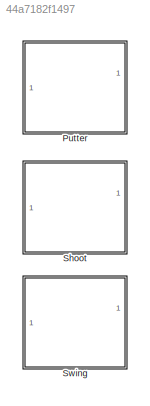
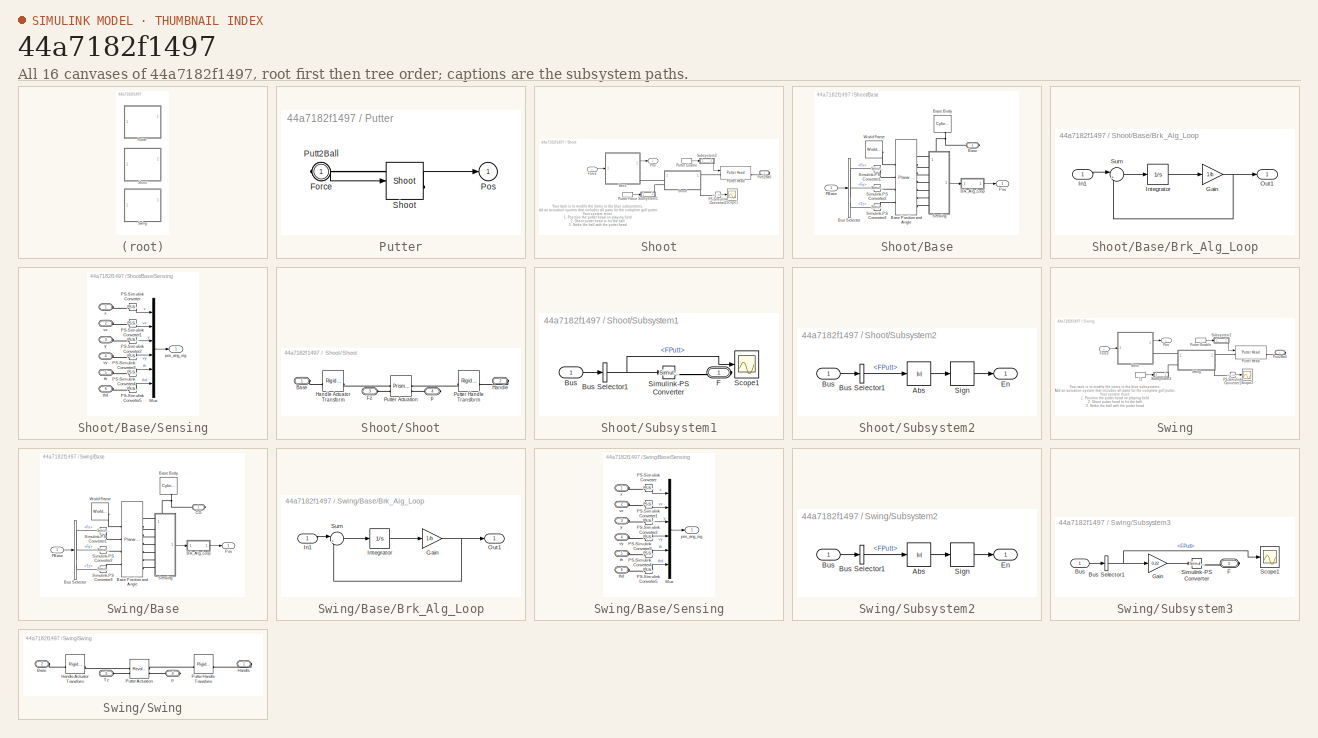
[diagram: thumbnail index - all 16 canvases of the model, root first then tree order]
MODEL slx_44a7182f1497
KIND library
CONFIG AbsTol = auto
CONFIG EnableMultiTasking = on
CONFIG FixedStep = auto
CONFIG MaxStep = auto
CONFIG MinStep = auto
CONFIG RelTol = 1e-3
CONFIG SampleTimeConstraint = Unconstrained
CONFIG SolverName = ode45
CONFIG StartTime = 0.0
CONFIG StopTime = 10.0
BLOCK [SubSystem] Putter
  BlockChoice = Shoot
  MemberBlocks = Shoot,Swing
  TemplateBlock = self
BLOCK [Inport] Putter/Force
BLOCK [Outport] Putter/Pos
  VectorParamsAs1DForOutWhenUnconnected = off
BLOCK [PMIOPort] Putter/Putt2Ball
  Side = Right
BLOCK [Reference] Putter/Shoot  REF=$bdroot/Shoot
  SourceBlock = $bdroot/Shoot
BLOCK [SubSystem] Shoot
BLOCK [SubSystem] Shoot/Base
BLOCK [PMIOPort] Shoot/Base/Base
  NameLocation = top
  Side = Right
BLOCK [Reference] Shoot/Base/Base Body  REF=sm_lib/Body Elements/Cylindrical Solid
  NameLocation = left
  SourceBlock = sm_lib/Body Elements/Cylindrical Solid
  SourceType = Cylindrical Solid
BLOCK [Reference] Shoot/Base/Base Position and Angle  REF=sm_lib/Joints/Planar Joint
  SourceBlock = sm_lib/Joints/Planar Joint
  SourceType = Planar Joint
BLOCK [SubSystem] Shoot/Base/Brk_Alg_Loop
BLOCK [Gain] Shoot/Base/Brk_Alg_Loop/Gain
  Gain = 1/b
BLOCK [Inport] Shoot/Base/Brk_Alg_Loop/In1
BLOCK [Integrator] Shoot/Base/Brk_Alg_Loop/Integrator
  InitialCondition = x_initial
BLOCK [Outport] Shoot/Base/Brk_Alg_Loop/Out1
  VectorParamsAs1DForOutWhenUnconnected = off
BLOCK [Sum] Shoot/Base/Brk_Alg_Loop/Sum
  InputSameDT = on
  Inputs = |+-
  OutDataTypeStr = Inherit: Same as first input
  SaturateOnIntegerOverflow = on
BLOCK [BusSelector] Shoot/Base/Bus Selector
  OutputSignals = Fx,Fy,Tz
BLOCK [Inport] Shoot/Base/FBase
BLOCK [Outport] Shoot/Base/Pos
  VectorParamsAs1DForOutWhenUnconnected = off
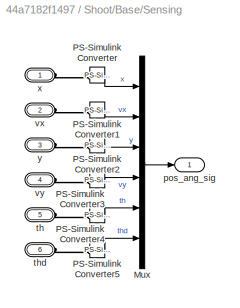
BLOCK [SubSystem] Shoot/Base/Sensing
BLOCK [Mux] Shoot/Base/Sensing/Mux
  DisplayOption = bar
  Inputs = 6
BLOCK [Reference] Shoot/Base/Sensing/PS-Simulink Converter  REF=nesl_utility/PS-Simulink
Converter
  SourceBlock = nesl_utility/PS-Simulink\nConverter
  SourceType = PS-Simulink\nConverter
BLOCK [Reference] Shoot/Base/Sensing/PS-Simulink Converter1  REF=nesl_utility/PS-Simulink
Converter
  SourceBlock = nesl_utility/PS-Simulink\nConverter
  SourceType = PS-Simulink\nConverter
BLOCK [Reference] Shoot/Base/Sensing/PS-Simulink Converter2  REF=nesl_utility/PS-Simulink
Converter
  SourceBlock = nesl_utility/PS-Simulink\nConverter
  SourceType = PS-Simulink\nConverter
BLOCK [Reference] Shoot/Base/Sensing/PS-Simulink Converter3  REF=nesl_utility/PS-Simulink
Converter
  SourceBlock = nesl_utility/PS-Simulink\nConverter
  SourceType = PS-Simulink\nConverter
BLOCK [Reference] Shoot/Base/Sensing/PS-Simulink Converter4  REF=nesl_utility/PS-Simulink
Converter
  SourceBlock = nesl_utility/PS-Simulink\nConverter
  SourceType = PS-Simulink\nConverter
BLOCK [Reference] Shoot/Base/Sensing/PS-Simulink Converter5  REF=nesl_utility/PS-Simulink
Converter
  SourceBlock = nesl_utility/PS-Simulink\nConverter
  SourceType = PS-Simulink\nConverter
BLOCK [Outport] Shoot/Base/Sensing/pos_ang_sig
  VectorParamsAs1DForOutWhenUnconnected = off
BLOCK [PMIOPort] Shoot/Base/Sensing/th
  Port = 5
  Side = Left
BLOCK [PMIOPort] Shoot/Base/Sensing/thd
  Port = 6
  Side = Left
BLOCK [PMIOPort] Shoot/Base/Sensing/vx
  Port = 2
  Side = Left
BLOCK [PMIOPort] Shoot/Base/Sensing/vy
  Port = 4
  Side = Left
BLOCK [PMIOPort] Shoot/Base/Sensing/x
  Side = Left
BLOCK [PMIOPort] Shoot/Base/Sensing/y
  Port = 3
  Side = Left
BLOCK [Reference] Shoot/Base/Simulink-PS Converter1  REF=nesl_utility/Simulink-PS
Converter
  SourceBlock = nesl_utility/Simulink-PS\nConverter
  SourceType = Simulink-PS\nConverter
BLOCK [Reference] Shoot/Base/Simulink-PS Converter2  REF=nesl_utility/Simulink-PS
Converter
  SourceBlock = nesl_utility/Simulink-PS\nConverter
  SourceType = Simulink-PS\nConverter
BLOCK [Reference] Shoot/Base/Simulink-PS Converter3  REF=nesl_utility/Simulink-PS
Converter
  SourceBlock = nesl_utility/Simulink-PS\nConverter
  SourceType = Simulink-PS\nConverter
BLOCK [Reference] Shoot/Base/World Frame  REF=sm_lib/Frames and
Transforms/World Frame
  NameLocation = top
  SourceBlock = sm_lib/Frames and\nTransforms/World Frame
  SourceType = World Frame
BLOCK [Inport] Shoot/Force
BLOCK [Reference] Shoot/PS-Simulink Converter5  REF=nesl_utility/PS-Simulink
Converter
  SourceBlock = nesl_utility/PS-Simulink\nConverter
  SourceType = PS-Simulink\nConverter
BLOCK [Outport] Shoot/Pos
  VectorParamsAs1DForOutWhenUnconnected = off
BLOCK [PMIOPort] Shoot/Putt2Ball
  Side = Right
BLOCK [InportShadow] Shoot/Putter Enable
BLOCK [InportShadow] Shoot/Putter Force
BLOCK [Reference] Shoot/Putter Head  REF=Golf_Components_Lib/Putter Head
  SourceBlock = Golf_Components_Lib/Putter Head
  SourceType = Wall with Round Ends, 2D Contact Forces
BLOCK [Scope] Shoot/Scope1
  Floating = off
  NumInputPorts = 1
  ScopeSpecificationString = Simulink.scopes.TimeScopeBlockCfg('CurrentConfiguration', extmgr.ConfigurationSet(extmgr.Configuration('Core','General UI',true),extmgr.Configuration('Core','Source UI',true),extmgr.Configuration('Sources','WiredSimulink',true,'DataLoggingVariableName','ScopeData7','DataLoggingSaveFormat','StructureWithTime','DataLoggingDecimation','1','DataLoggingDecimateData',true),extmgr.Configuration('Visuals'...<+895ch>
BLOCK [SubSystem] Shoot/Shoot
BLOCK [PMIOPort] Shoot/Shoot/Base
  Side = Left
BLOCK [PMIOPort] Shoot/Shoot/Fz
  Port = 3
  Side = Left
BLOCK [PMIOPort] Shoot/Shoot/Handle
  Port = 2
  Side = Right
BLOCK [Reference] Shoot/Shoot/Handle Actuator Transform  REF=sm_lib/Frames and
Transforms/Rigid
Transform
  SourceBlock = sm_lib/Frames and\nTransforms/Rigid\nTransform
  SourceType = Rigid\nTransform
BLOCK [Reference] Shoot/Shoot/Putter Actuation  REF=sm_lib/Joints/Prismatic
Joint
  SourceBlock = sm_lib/Joints/Prismatic\nJoint
  SourceType = Prismatic\nJoint
BLOCK [Reference] Shoot/Shoot/Putter Handle Transform  REF=sm_lib/Frames and
Transforms/Rigid
Transform
  SourceBlock = sm_lib/Frames and\nTransforms/Rigid\nTransform
  SourceType = Rigid\nTransform
BLOCK [PMIOPort] Shoot/Shoot/p
  Port = 4
  Side = Right
BLOCK [SubSystem] Shoot/Subsystem1
BLOCK [Inport] Shoot/Subsystem1/Bus
BLOCK [BusSelector] Shoot/Subsystem1/Bus Selector1
  OutputSignals = FPutt
BLOCK [PMIOPort] Shoot/Subsystem1/F
  Side = Right
BLOCK [Scope] Shoot/Subsystem1/Scope1
  Floating = off
  NumInputPorts = 1
  ScopeSpecificationString = Simulink.scopes.TimeScopeBlockCfg('CurrentConfiguration', extmgr.ConfigurationSet(extmgr.Configuration('Core','General UI',true),extmgr.Configuration('Core','Source UI',true),extmgr.Configuration('Sources','WiredSimulink',true,'DataLoggingVariableName','ScopeData11','DataLoggingSaveFormat','StructureWithTime','DataLoggingDecimation','1','DataLoggingDecimateData',true),extmgr.Configuration('Visuals...<+896ch>
BLOCK [Reference] Shoot/Subsystem1/Simulink-PS Converter  REF=nesl_utility/Simulink-PS
Converter
  SourceBlock = nesl_utility/Simulink-PS\nConverter
  SourceType = Simulink-PS\nConverter
BLOCK [SubSystem] Shoot/Subsystem2
BLOCK [Abs] Shoot/Subsystem2/Abs
  SaturateOnIntegerOverflow = off
BLOCK [Inport] Shoot/Subsystem2/Bus
BLOCK [BusSelector] Shoot/Subsystem2/Bus Selector1
  OutputSignals = FPutt
BLOCK [Outport] Shoot/Subsystem2/En
  NameLocation = top
  VectorParamsAs1DForOutWhenUnconnected = off
BLOCK [Signum] Shoot/Subsystem2/Sign
BLOCK [SubSystem] Swing
BLOCK [SubSystem] Swing/Base
BLOCK [Reference] Swing/Base/Base Body  REF=sm_lib/Body Elements/Cylindrical Solid
  NameLocation = left
  SourceBlock = sm_lib/Body Elements/Cylindrical Solid
  SourceType = Cylindrical Solid
BLOCK [Reference] Swing/Base/Base Position and Angle  REF=sm_lib/Joints/Planar Joint
  SourceBlock = sm_lib/Joints/Planar Joint
  SourceType = Planar Joint
BLOCK [SubSystem] Swing/Base/Brk_Alg_Loop
BLOCK [Gain] Swing/Base/Brk_Alg_Loop/Gain
  Gain = 1/b
BLOCK [Inport] Swing/Base/Brk_Alg_Loop/In1
BLOCK [Integrator] Swing/Base/Brk_Alg_Loop/Integrator
  InitialCondition = x_initial
BLOCK [Outport] Swing/Base/Brk_Alg_Loop/Out1
  VectorParamsAs1DForOutWhenUnconnected = off
BLOCK [Sum] Swing/Base/Brk_Alg_Loop/Sum
  InputSameDT = on
  Inputs = |+-
  OutDataTypeStr = Inherit: Same as first input
  SaturateOnIntegerOverflow = on
BLOCK [BusSelector] Swing/Base/Bus Selector
  OutputSignals = Fx,Fy,Tz
BLOCK [PMIOPort] Swing/Base/CG
  NameLocation = top
  Side = Right
BLOCK [Inport] Swing/Base/FBase
BLOCK [Outport] Swing/Base/Pos
  VectorParamsAs1DForOutWhenUnconnected = off
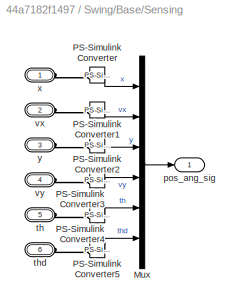
BLOCK [SubSystem] Swing/Base/Sensing
BLOCK [Mux] Swing/Base/Sensing/Mux
  DisplayOption = bar
  Inputs = 6
BLOCK [Reference] Swing/Base/Sensing/PS-Simulink Converter  REF=nesl_utility/PS-Simulink
Converter
  SourceBlock = nesl_utility/PS-Simulink\nConverter
  SourceType = PS-Simulink\nConverter
BLOCK [Reference] Swing/Base/Sensing/PS-Simulink Converter1  REF=nesl_utility/PS-Simulink
Converter
  SourceBlock = nesl_utility/PS-Simulink\nConverter
  SourceType = PS-Simulink\nConverter
BLOCK [Reference] Swing/Base/Sensing/PS-Simulink Converter2  REF=nesl_utility/PS-Simulink
Converter
  SourceBlock = nesl_utility/PS-Simulink\nConverter
  SourceType = PS-Simulink\nConverter
BLOCK [Reference] Swing/Base/Sensing/PS-Simulink Converter3  REF=nesl_utility/PS-Simulink
Converter
  SourceBlock = nesl_utility/PS-Simulink\nConverter
  SourceType = PS-Simulink\nConverter
BLOCK [Reference] Swing/Base/Sensing/PS-Simulink Converter4  REF=nesl_utility/PS-Simulink
Converter
  SourceBlock = nesl_utility/PS-Simulink\nConverter
  SourceType = PS-Simulink\nConverter
BLOCK [Reference] Swing/Base/Sensing/PS-Simulink Converter5  REF=nesl_utility/PS-Simulink
Converter
  SourceBlock = nesl_utility/PS-Simulink\nConverter
  SourceType = PS-Simulink\nConverter
BLOCK [Outport] Swing/Base/Sensing/pos_ang_sig
  VectorParamsAs1DForOutWhenUnconnected = off
BLOCK [PMIOPort] Swing/Base/Sensing/th
  Port = 5
  Side = Left
BLOCK [PMIOPort] Swing/Base/Sensing/thd
  Port = 6
  Side = Left
BLOCK [PMIOPort] Swing/Base/Sensing/vx
  Port = 2
  Side = Left
BLOCK [PMIOPort] Swing/Base/Sensing/vy
  Port = 4
  Side = Left
BLOCK [PMIOPort] Swing/Base/Sensing/x
  Side = Left
BLOCK [PMIOPort] Swing/Base/Sensing/y
  Port = 3
  Side = Left
BLOCK [Reference] Swing/Base/Simulink-PS Converter1  REF=nesl_utility/Simulink-PS
Converter
  SourceBlock = nesl_utility/Simulink-PS\nConverter
  SourceType = Simulink-PS\nConverter
BLOCK [Reference] Swing/Base/Simulink-PS Converter2  REF=nesl_utility/Simulink-PS
Converter
  SourceBlock = nesl_utility/Simulink-PS\nConverter
  SourceType = Simulink-PS\nConverter
BLOCK [Reference] Swing/Base/Simulink-PS Converter3  REF=nesl_utility/Simulink-PS
Converter
  SourceBlock = nesl_utility/Simulink-PS\nConverter
  SourceType = Simulink-PS\nConverter
BLOCK [Reference] Swing/Base/World Frame  REF=sm_lib/Frames and
Transforms/World Frame
  NameLocation = top
  SourceBlock = sm_lib/Frames and\nTransforms/World Frame
  SourceType = World Frame
BLOCK [Inport] Swing/Force
BLOCK [Reference] Swing/PS-Simulink Converter1  REF=nesl_utility/PS-Simulink
Converter
  SourceBlock = nesl_utility/PS-Simulink\nConverter
  SourceType = PS-Simulink\nConverter
BLOCK [Outport] Swing/Pos
  VectorParamsAs1DForOutWhenUnconnected = off
BLOCK [PMIOPort] Swing/Putt2Ball
  Side = Right
BLOCK [InportShadow] Swing/Putter Enable
BLOCK [Reference] Swing/Putter Head  REF=Golf_Components_Lib/Putter Head
  SourceBlock = Golf_Components_Lib/Putter Head
  SourceType = Wall with Round Ends, 2D Contact Forces
BLOCK [Scope] Swing/Scope2
  Floating = off
  NumInputPorts = 1
  ScopeSpecificationString = Simulink.scopes.TimeScopeBlockCfg('CurrentConfiguration', extmgr.ConfigurationSet(extmgr.Configuration('Core','General UI',true),extmgr.Configuration('Core','Source UI',true),extmgr.Configuration('Sources','WiredSimulink',true,'DataLoggingVariableName','ScopeData1','DataLoggingSaveFormat','StructureWithTime','DataLoggingDecimation','1','DataLoggingDecimateData',true),extmgr.Configuration('Visuals'...<+895ch>
BLOCK [SubSystem] Swing/Subsystem2
BLOCK [Abs] Swing/Subsystem2/Abs
  SaturateOnIntegerOverflow = off
BLOCK [Inport] Swing/Subsystem2/Bus
BLOCK [BusSelector] Swing/Subsystem2/Bus Selector1
  OutputSignals = FPutt
BLOCK [Outport] Swing/Subsystem2/En
  NameLocation = top
  VectorParamsAs1DForOutWhenUnconnected = off
BLOCK [Signum] Swing/Subsystem2/Sign
BLOCK [SubSystem] Swing/Subsystem3
BLOCK [Inport] Swing/Subsystem3/Bus
BLOCK [BusSelector] Swing/Subsystem3/Bus Selector1
  OutputSignals = FPutt
BLOCK [PMIOPort] Swing/Subsystem3/F
  Side = Right
BLOCK [Gain] Swing/Subsystem3/Gain
  Gain = 0.22
BLOCK [Scope] Swing/Subsystem3/Scope1
  Floating = off
  NumInputPorts = 1
  ScopeSpecificationString = Simulink.scopes.TimeScopeBlockCfg('CurrentConfiguration', extmgr.ConfigurationSet(extmgr.Configuration('Core','General UI',true),extmgr.Configuration('Core','Source UI',true),extmgr.Configuration('Sources','WiredSimulink',true,'DataLoggingVariableName','ScopeData11','DataLoggingSaveFormat','StructureWithTime','DataLoggingDecimation','1','DataLoggingDecimateData',true),extmgr.Configuration('Visuals...<+896ch>
BLOCK [Reference] Swing/Subsystem3/Simulink-PS Converter  REF=nesl_utility/Simulink-PS
Converter
  SourceBlock = nesl_utility/Simulink-PS\nConverter
  SourceType = Simulink-PS\nConverter
BLOCK [SubSystem] Swing/Swing
BLOCK [PMIOPort] Swing/Swing/Base
  Port = 2
  Side = Left
BLOCK [PMIOPort] Swing/Swing/Handle
  Side = Right
BLOCK [Reference] Swing/Swing/Handle Actuator Transform  REF=sm_lib/Frames and
Transforms/Rigid
Transform
  SourceBlock = sm_lib/Frames and\nTransforms/Rigid\nTransform
  SourceType = Rigid\nTransform
BLOCK [Reference] Swing/Swing/Putter Actuation  REF=sm_lib/Joints/Revolute Joint
  SourceBlock = sm_lib/Joints/Revolute Joint
  SourceType = Revolute Joint
BLOCK [Reference] Swing/Swing/Putter Handle Transform  REF=sm_lib/Frames and
Transforms/Rigid
Transform
  SourceBlock = sm_lib/Frames and\nTransforms/Rigid\nTransform
  SourceType = Rigid\nTransform
BLOCK [PMIOPort] Swing/Swing/Tz
  Port = 3
  Side = Left
BLOCK [PMIOPort] Swing/Swing/p
  Port = 4
  Side = Right
BLOCK [InportShadow] Swing/Tz
ANNOTATION Shoot: Your task is to modify the items in the blue subsystems. Add an actuation system that includes all parts for the complete golf putter. Your system must: 1. Position the putter head on playing field 2. Orient putter head to hit the ball 3. Strike the ball with the putter head You must use the provided putter head. Both templates for the putter (shooting and swinging) are located in Actuation_Lib.md...<+1ch>
ANNOTATION Swing: Your task is to modify the items in the blue subsystems. Add an actuation system that includes all parts for the complete golf putter. Your system must: 1. Position the putter head on playing field 2. Orient putter head to hit the ball 3. Strike the ball with the putter head You must use the provided putter head. Both templates for the putter (shooting and swinging) are located in Actuation_Lib.md...<+1ch>
LINE Putter/Force:1 -> Putter/Shoot:1
LINE Putter/Shoot:1 -> Putter/Pos:1
NET Shoot/Base/Brk_Alg_Loop/Gain:1 -> Shoot/Base/Brk_Alg_Loop/Out1:1, Shoot/Base/Brk_Alg_Loop/Sum:2
LINE Shoot/Base/Brk_Alg_Loop/In1:1 -> Shoot/Base/Brk_Alg_Loop/Sum:1
LINE Shoot/Base/Brk_Alg_Loop/Integrator:1 -> Shoot/Base/Brk_Alg_Loop/Gain:1
LINE Shoot/Base/Brk_Alg_Loop/Sum:1 -> Shoot/Base/Brk_Alg_Loop/Integrator:1
LINE Shoot/Base/Brk_Alg_Loop:1 -> Shoot/Base/Pos:1
LINE Shoot/Base/Bus Selector:1 -> Shoot/Base/Simulink-PS Converter1:1
LINE Shoot/Base/Bus Selector:2 -> Shoot/Base/Simulink-PS Converter2:1
LINE Shoot/Base/Bus Selector:3 -> Shoot/Base/Simulink-PS Converter3:1
LINE Shoot/Base/FBase:1 -> Shoot/Base/Bus Selector:1
LINE Shoot/Base/Sensing/Mux:1 -> Shoot/Base/Sensing/pos_ang_sig:1
LINE Shoot/Base/Sensing/PS-Simulink Converter1:1 -> Shoot/Base/Sensing/Mux:2
LINE Shoot/Base/Sensing/PS-Simulink Converter2:1 -> Shoot/Base/Sensing/Mux:3
LINE Shoot/Base/Sensing/PS-Simulink Converter3:1 -> Shoot/Base/Sensing/Mux:4
LINE Shoot/Base/Sensing/PS-Simulink Converter4:1 -> Shoot/Base/Sensing/Mux:5
LINE Shoot/Base/Sensing/PS-Simulink Converter5:1 -> Shoot/Base/Sensing/Mux:6
LINE Shoot/Base/Sensing/PS-Simulink Converter:1 -> Shoot/Base/Sensing/Mux:1
LINE Shoot/Base/Sensing:1 -> Shoot/Base/Brk_Alg_Loop:1
LINE Shoot/Base:1 -> Shoot/Pos:1
LINE Shoot/Force:1 -> Shoot/Base:1
LINE Shoot/PS-Simulink Converter5:1 -> Shoot/Scope1:1
LINE Shoot/Putter Enable:1 -> Shoot/Subsystem2:1
LINE Shoot/Putter Force:1 -> Shoot/Subsystem1:1
NET Shoot/Subsystem1/Bus Selector1:1 -> Shoot/Subsystem1/Scope1:1, Shoot/Subsystem1/Simulink-PS Converter:1
LINE Shoot/Subsystem1/Bus:1 -> Shoot/Subsystem1/Bus Selector1:1
LINE Shoot/Subsystem2/Abs:1 -> Shoot/Subsystem2/Sign:1
LINE Shoot/Subsystem2/Bus Selector1:1 -> Shoot/Subsystem2/Abs:1
LINE Shoot/Subsystem2/Bus:1 -> Shoot/Subsystem2/Bus Selector1:1
LINE Shoot/Subsystem2/Sign:1 -> Shoot/Subsystem2/En:1
LINE Shoot/Subsystem2:1 -> Shoot/Putter Head:1
NET Swing/Base/Brk_Alg_Loop/Gain:1 -> Swing/Base/Brk_Alg_Loop/Out1:1, Swing/Base/Brk_Alg_Loop/Sum:2
LINE Swing/Base/Brk_Alg_Loop/In1:1 -> Swing/Base/Brk_Alg_Loop/Sum:1
LINE Swing/Base/Brk_Alg_Loop/Integrator:1 -> Swing/Base/Brk_Alg_Loop/Gain:1
LINE Swing/Base/Brk_Alg_Loop/Sum:1 -> Swing/Base/Brk_Alg_Loop/Integrator:1
LINE Swing/Base/Brk_Alg_Loop:1 -> Swing/Base/Pos:1
LINE Swing/Base/Bus Selector:1 -> Swing/Base/Simulink-PS Converter1:1
LINE Swing/Base/Bus Selector:2 -> Swing/Base/Simulink-PS Converter2:1
LINE Swing/Base/Bus Selector:3 -> Swing/Base/Simulink-PS Converter3:1
LINE Swing/Base/FBase:1 -> Swing/Base/Bus Selector:1
LINE Swing/Base/Sensing/Mux:1 -> Swing/Base/Sensing/pos_ang_sig:1
LINE Swing/Base/Sensing/PS-Simulink Converter1:1 -> Swing/Base/Sensing/Mux:2
LINE Swing/Base/Sensing/PS-Simulink Converter2:1 -> Swing/Base/Sensing/Mux:3
LINE Swing/Base/Sensing/PS-Simulink Converter3:1 -> Swing/Base/Sensing/Mux:4
LINE Swing/Base/Sensing/PS-Simulink Converter4:1 -> Swing/Base/Sensing/Mux:5
LINE Swing/Base/Sensing/PS-Simulink Converter5:1 -> Swing/Base/Sensing/Mux:6
LINE Swing/Base/Sensing/PS-Simulink Converter:1 -> Swing/Base/Sensing/Mux:1
LINE Swing/Base/Sensing:1 -> Swing/Base/Brk_Alg_Loop:1
LINE Swing/Base:1 -> Swing/Pos:1
LINE Swing/Force:1 -> Swing/Base:1
LINE Swing/PS-Simulink Converter1:1 -> Swing/Scope2:1
LINE Swing/Putter Enable:1 -> Swing/Subsystem2:1
LINE Swing/Subsystem2/Abs:1 -> Swing/Subsystem2/Sign:1
LINE Swing/Subsystem2/Bus Selector1:1 -> Swing/Subsystem2/Abs:1
LINE Swing/Subsystem2/Bus:1 -> Swing/Subsystem2/Bus Selector1:1
LINE Swing/Subsystem2/Sign:1 -> Swing/Subsystem2/En:1
LINE Swing/Subsystem2:1 -> Swing/Putter Head:1
NET Swing/Subsystem3/Bus Selector1:1 -> Swing/Subsystem3/Gain:1, Swing/Subsystem3/Scope1:1
LINE Swing/Subsystem3/Bus:1 -> Swing/Subsystem3/Bus Selector1:1
LINE Swing/Subsystem3/Gain:1 -> Swing/Subsystem3/Simulink-PS Converter:1
LINE Swing/Tz:1 -> Swing/Subsystem3:1
PLINE Putter/Putt2Ball:RConn1 -- Putter/Shoot:RConn1
PNET net1: Shoot/Base/Base Body:RConn1 -- Shoot/Base/Base Position and Angle:RConn1 -- Shoot/Base/Base:RConn1
PLINE Shoot/Base/Base Position and Angle:LConn1 -- Shoot/Base/World Frame:RConn1
PLINE Shoot/Base/Base Position and Angle:LConn2 -- Shoot/Base/Simulink-PS Converter1:RConn1
PLINE Shoot/Base/Base Position and Angle:LConn3 -- Shoot/Base/Simulink-PS Converter2:RConn1
PLINE Shoot/Base/Base Position and Angle:LConn4 -- Shoot/Base/Simulink-PS Converter3:RConn1
PLINE Shoot/Base/Base Position and Angle:RConn2 -- Shoot/Base/Sensing:LConn1
PLINE Shoot/Base/Base Position and Angle:RConn3 -- Shoot/Base/Sensing:LConn2
PLINE Shoot/Base/Base Position and Angle:RConn4 -- Shoot/Base/Sensing:LConn3
PLINE Shoot/Base/Base Position and Angle:RConn5 -- Shoot/Base/Sensing:LConn4
PLINE Shoot/Base/Base Position and Angle:RConn6 -- Shoot/Base/Sensing:LConn5
PLINE Shoot/Base/Base Position and Angle:RConn7 -- Shoot/Base/Sensing:LConn6
PLINE Shoot/Base/Sensing/PS-Simulink Converter1:LConn1 -- Shoot/Base/Sensing/vx:RConn1
PLINE Shoot/Base/Sensing/PS-Simulink Converter2:LConn1 -- Shoot/Base/Sensing/y:RConn1
PLINE Shoot/Base/Sensing/PS-Simulink Converter3:LConn1 -- Shoot/Base/Sensing/vy:RConn1
PLINE Shoot/Base/Sensing/PS-Simulink Converter4:LConn1 -- Shoot/Base/Sensing/th:RConn1
PLINE Shoot/Base/Sensing/PS-Simulink Converter5:LConn1 -- Shoot/Base/Sensing/thd:RConn1
PLINE Shoot/Base/Sensing/PS-Simulink Converter:LConn1 -- Shoot/Base/Sensing/x:RConn1
PLINE Shoot/Base:RConn1 -- Shoot/Shoot:LConn1
PLINE Shoot/PS-Simulink Converter5:LConn1 -- Shoot/Shoot:RConn2
PLINE Shoot/Putt2Ball:RConn1 -- Shoot/Putter Head:RConn1
PLINE Shoot/Putter Head:LConn1 -- Shoot/Shoot:RConn1
PLINE Shoot/Shoot/Base:RConn1 -- Shoot/Shoot/Handle Actuator Transform:LConn1
PLINE Shoot/Shoot/Fz:RConn1 -- Shoot/Shoot/Putter Actuation:LConn2
PLINE Shoot/Shoot/Handle Actuator Transform:RConn1 -- Shoot/Shoot/Putter Actuation:LConn1
PLINE Shoot/Shoot/Handle:RConn1 -- Shoot/Shoot/Putter Handle Transform:RConn1
PLINE Shoot/Shoot/Putter Actuation:RConn1 -- Shoot/Shoot/Putter Handle Transform:LConn1
PLINE Shoot/Shoot/Putter Actuation:RConn2 -- Shoot/Shoot/p:RConn1
PLINE Shoot/Shoot:LConn2 -- Shoot/Subsystem1:RConn1
PLINE Shoot/Subsystem1/F:RConn1 -- Shoot/Subsystem1/Simulink-PS Converter:RConn1
PNET net2: Swing/Base/Base Body:RConn1 -- Swing/Base/Base Position and Angle:RConn1 -- Swing/Base/CG:RConn1
PLINE Swing/Base/Base Position and Angle:LConn1 -- Swing/Base/World Frame:RConn1
PLINE Swing/Base/Base Position and Angle:LConn2 -- Swing/Base/Simulink-PS Converter1:RConn1
PLINE Swing/Base/Base Position and Angle:LConn3 -- Swing/Base/Simulink-PS Converter2:RConn1
PLINE Swing/Base/Base Position and Angle:LConn4 -- Swing/Base/Simulink-PS Converter3:RConn1
PLINE Swing/Base/Base Position and Angle:RConn2 -- Swing/Base/Sensing:LConn1
PLINE Swing/Base/Base Position and Angle:RConn3 -- Swing/Base/Sensing:LConn2
PLINE Swing/Base/Base Position and Angle:RConn4 -- Swing/Base/Sensing:LConn3
PLINE Swing/Base/Base Position and Angle:RConn5 -- Swing/Base/Sensing:LConn4
PLINE Swing/Base/Base Position and Angle:RConn6 -- Swing/Base/Sensing:LConn5
PLINE Swing/Base/Base Position and Angle:RConn7 -- Swing/Base/Sensing:LConn6
PLINE Swing/Base/Sensing/PS-Simulink Converter1:LConn1 -- Swing/Base/Sensing/vx:RConn1
PLINE Swing/Base/Sensing/PS-Simulink Converter2:LConn1 -- Swing/Base/Sensing/y:RConn1
PLINE Swing/Base/Sensing/PS-Simulink Converter3:LConn1 -- Swing/Base/Sensing/vy:RConn1
PLINE Swing/Base/Sensing/PS-Simulink Converter4:LConn1 -- Swing/Base/Sensing/th:RConn1
PLINE Swing/Base/Sensing/PS-Simulink Converter5:LConn1 -- Swing/Base/Sensing/thd:RConn1
PLINE Swing/Base/Sensing/PS-Simulink Converter:LConn1 -- Swing/Base/Sensing/x:RConn1
PLINE Swing/Base:RConn1 -- Swing/Swing:LConn1
PLINE Swing/PS-Simulink Converter1:LConn1 -- Swing/Swing:RConn2
PLINE Swing/Putt2Ball:RConn1 -- Swing/Putter Head:RConn1
PLINE Swing/Putter Head:LConn1 -- Swing/Swing:RConn1
PLINE Swing/Subsystem3/F:RConn1 -- Swing/Subsystem3/Simulink-PS Converter:RConn1
PLINE Swing/Subsystem3:RConn1 -- Swing/Swing:LConn2
PLINE Swing/Swing/Base:RConn1 -- Swing/Swing/Handle Actuator Transform:LConn1
PLINE Swing/Swing/Handle Actuator Transform:RConn1 -- Swing/Swing/Putter Actuation:LConn1
PLINE Swing/Swing/Handle:RConn1 -- Swing/Swing/Putter Handle Transform:RConn1
PLINE Swing/Swing/Putter Actuation:LConn2 -- Swing/Swing/Tz:RConn1
PLINE Swing/Swing/Putter Actuation:RConn1 -- Swing/Swing/Putter Handle Transform:LConn1
PLINE Swing/Swing/Putter Actuation:RConn2 -- Swing/Swing/p:RConn1
note: NET lines group one-source signal fan-out (src -> all destinations, sorted); 1:1 wires keep LINE; PNET lines group multi-terminal physical nets as a canonical sorted terminal list (undirected conserving connections); 2-terminal nets keep the pairwise PLINE form
